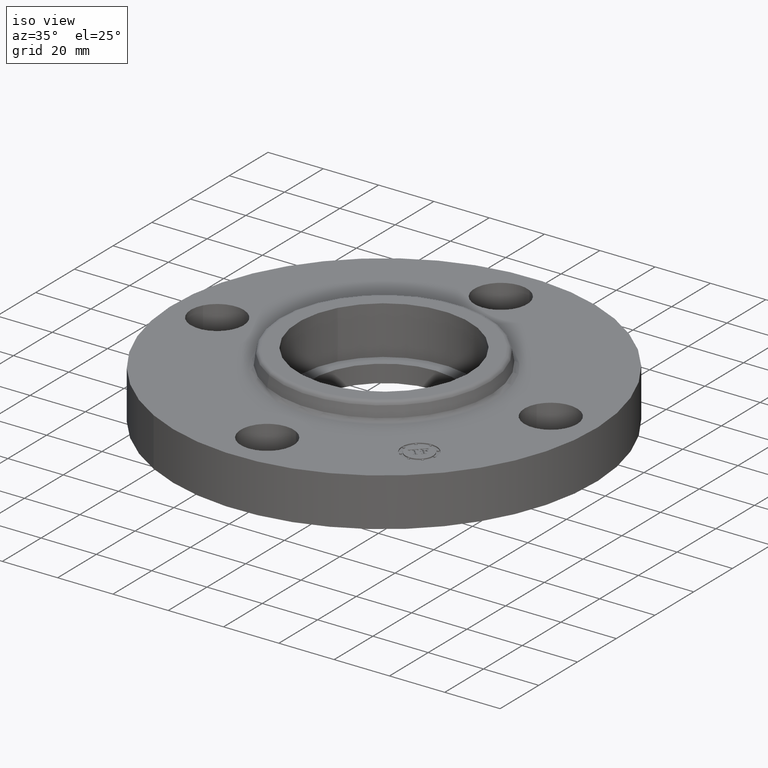
[diagram: clean part render]
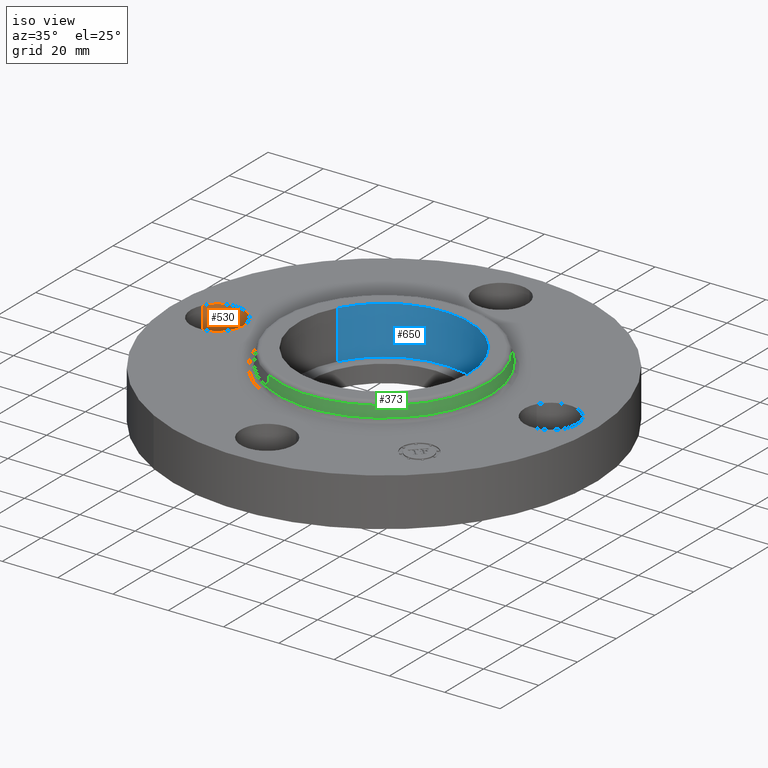
[diagram: same view with three faces highlighted in distinct colors, each labeled with its STEP entity id]
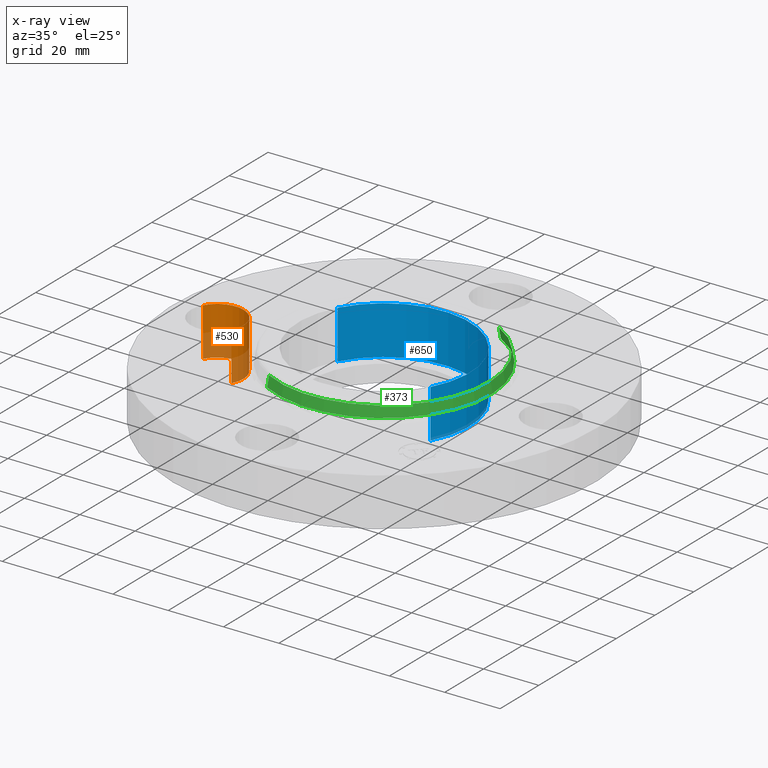
[diagram: x-ray of the same camera — body ghosted, the three highlighted faces saturated]
A machine part, iso view with three faces highlighted in distinct colors.
The next image is the same camera in x-ray (body ghosted, the three faces saturated) — at least one of them is partly hidden behind the body in this view.
Their STEP definitions:

[orange] entity #530 — the highlighted cylindrical surface (edge-blend (fillet) strip) has radius 9.525 mm, axis along (-0, 0, -1).
#217=AXIS2_PLACEMENT_3D('Circle Axis2P3D',#215,#216,$) ;
#503=AXIS2_PLACEMENT_3D('Cylinder Axis2P3D',#500,#501,#502) ;
#521=AXIS2_PLACEMENT_3D('Circle Axis2P3D',#519,#520,$) ;
#210=CARTESIAN_POINT('Vertex',(-2.0459065393,-0.179784576977,0.)) ;
#212=CARTESIAN_POINT('Vertex',(-2.70409346072,0.179784576977,0.)) ;
#215=CARTESIAN_POINT('Axis2P3D Location',(-2.37500000001,-2.79741234551E-016,0.)) ;
#500=CARTESIAN_POINT('Axis2P3D Location',(-2.37500000001,-2.90853614799E-016,0.686062992129)) ;
#505=CARTESIAN_POINT('Line Origine',(-2.70409346072,0.179784576977,0.345000000001)) ;
#509=CARTESIAN_POINT('Vertex',(-2.70409346072,0.179784576977,0.690000000003)) ;
#512=CARTESIAN_POINT('Line Origine',(-2.0459065393,-0.179784576977,0.345000000001)) ;
#516=CARTESIAN_POINT('Vertex',(-2.0459065393,-0.179784576977,0.690000000003)) ;
#519=CARTESIAN_POINT('Axis2P3D Location',(-2.37500000001,-2.90853614799E-016,0.690000000003)) ;
#216=DIRECTION('Axis2P3D Direction',(0.,0.,-0.0393700787402)) ;
#501=DIRECTION('Axis2P3D Direction',(-0.,0.,-0.0393700787402)) ;
#502=DIRECTION('Axis2P3D XDirection',(0.0345504945626,-0.0188750212049,-0.)) ;
#506=DIRECTION('Vector Direction',(0.,0.,-0.0393700787402)) ;
#513=DIRECTION('Vector Direction',(0.,0.,-0.0393700787402)) ;
#520=DIRECTION('Axis2P3D Direction',(-0.,0.,-0.0393700787402)) ;
#507=VECTOR('Line Direction',#506,0.0393700787402) ;
#514=VECTOR('Line Direction',#513,0.0393700787402) ;
#525=ORIENTED_EDGE('',*,*,#511,.F.) ;
#526=ORIENTED_EDGE('',*,*,#219,.T.) ;
#527=ORIENTED_EDGE('',*,*,#518,.T.) ;
#528=ORIENTED_EDGE('',*,*,#523,.F.) ;
#530=ADVANCED_FACE('PartBody',(#529),#504,.F.) ;
#218=CIRCLE('generated circle',#217,0.375000000001) ;
#522=CIRCLE('generated circle',#521,0.375000000001) ;
#504=CYLINDRICAL_SURFACE('generated cylinder',#503,0.375000000001) ;
#219=EDGE_CURVE('',#213,#211,#218,.T.) ;
#511=EDGE_CURVE('',#213,#510,#508,.F.) ;
#518=EDGE_CURVE('',#211,#517,#515,.F.) ;
#523=EDGE_CURVE('',#510,#517,#522,.T.) ;
#524=EDGE_LOOP('',(#525,#526,#527,#528)) ;
#529=FACE_OUTER_BOUND('',#524,.T.) ;
#508=LINE('Line',#505,#507) ;
#515=LINE('Line',#512,#514) ;
#211=VERTEX_POINT('',#210) ;
#213=VERTEX_POINT('',#212) ;
#510=VERTEX_POINT('',#509) ;
#517=VERTEX_POINT('',#516) ;

[blue] entity #650 — the highlighted cylindrical surface (partial cylindrical patch) has radius 30.988 mm, axis along (0, 0, -1).
#42=AXIS2_PLACEMENT_3D('Circle Axis2P3D',#40,#41,$) ;
#440=AXIS2_PLACEMENT_3D('Circle Axis2P3D',#438,#439,$) ;
#632=AXIS2_PLACEMENT_3D('Cylinder Axis2P3D',#629,#630,#631) ;
#40=CARTESIAN_POINT('Axis2P3D Location',(0.,-6.99353086378E-017,0.250000000001)) ;
#44=CARTESIAN_POINT('Vertex',(-1.07065072551,0.584899157099,0.250000000001)) ;
#46=CARTESIAN_POINT('Vertex',(1.07065072551,-0.584899157099,0.250000000001)) ;
#438=CARTESIAN_POINT('Axis2P3D Location',(6.99353086378E-017,-2.79741234551E-016,0.940000000004)) ;
#442=CARTESIAN_POINT('Vertex',(-1.07065072551,0.584899157099,0.940000000004)) ;
#444=CARTESIAN_POINT('Vertex',(1.07065072551,-0.584899157099,0.940000000004)) ;
#629=CARTESIAN_POINT('Axis2P3D Location',(0.,-6.99353086378E-017,0.93606299213)) ;
#634=CARTESIAN_POINT('Line Origine',(-1.07065072551,0.584899157099,0.595000000002)) ;
#639=CARTESIAN_POINT('Line Origine',(1.07065072551,-0.584899157099,0.595000000002)) ;
#41=DIRECTION('Axis2P3D Direction',(0.,0.,-0.0393700787402)) ;
#439=DIRECTION('Axis2P3D Direction',(0.,0.,-0.0393700787402)) ;
#630=DIRECTION('Axis2P3D Direction',(0.,0.,-0.0393700787402)) ;
#631=DIRECTION('Axis2P3D XDirection',(0.0345504945626,-0.0188750212049,0.)) ;
#635=DIRECTION('Vector Direction',(0.,0.,-0.0393700787402)) ;
#640=DIRECTION('Vector Direction',(0.,0.,-0.0393700787402)) ;
#636=VECTOR('Line Direction',#635,0.0393700787402) ;
#641=VECTOR('Line Direction',#640,0.0393700787402) ;
#645=ORIENTED_EDGE('',*,*,#446,.F.) ;
#646=ORIENTED_EDGE('',*,*,#638,.F.) ;
#647=ORIENTED_EDGE('',*,*,#48,.T.) ;
#648=ORIENTED_EDGE('',*,*,#643,.T.) ;
#650=ADVANCED_FACE('PartBody',(#649),#633,.F.) ;
#43=CIRCLE('generated circle',#42,1.22) ;
#441=CIRCLE('generated circle',#440,1.22) ;
#633=CYLINDRICAL_SURFACE('generated cylinder',#632,1.22) ;
#48=EDGE_CURVE('',#45,#47,#43,.T.) ;
#446=EDGE_CURVE('',#443,#445,#441,.T.) ;
#638=EDGE_CURVE('',#45,#443,#637,.F.) ;
#643=EDGE_CURVE('',#47,#445,#642,.F.) ;
#644=EDGE_LOOP('',(#645,#646,#647,#648)) ;
#649=FACE_OUTER_BOUND('',#644,.T.) ;
#637=LINE('Line',#634,#636) ;
#642=LINE('Line',#639,#641) ;
#45=VERTEX_POINT('',#44) ;
#47=VERTEX_POINT('',#46) ;
#443=VERTEX_POINT('',#442) ;
#445=VERTEX_POINT('',#444) ;

[green] entity #373 — the highlighted conical surface has half-angle 10 deg.
#309=AXIS2_PLACEMENT_3D('Circle Axis2P3D',#307,#308,$) ;
#346=AXIS2_PLACEMENT_3D('Cone Axis2P3D',#343,#344,#345) ;
#357=AXIS2_PLACEMENT_3D('Circle Axis2P3D',#355,#356,$) ;
#304=CARTESIAN_POINT('Vertex',(0.72932970238,1.33502906529,0.739581109343)) ;
#307=CARTESIAN_POINT('Axis2P3D Location',(0.,0.,0.739581109343)) ;
#311=CARTESIAN_POINT('Vertex',(-0.72932970238,-1.33502906529,0.739581109343)) ;
#343=CARTESIAN_POINT('Axis2P3D Location',(0.,0.,0.890418890664)) ;
#348=CARTESIAN_POINT('Line Origine',(0.722954116855,1.32335863426,0.815000000003)) ;
#352=CARTESIAN_POINT('Vertex',(0.716578531331,1.31168820324,0.890418890664)) ;
#355=CARTESIAN_POINT('Axis2P3D Location',(0.,0.,0.890418890664)) ;
#359=CARTESIAN_POINT('Vertex',(-0.716578531331,-1.31168820324,0.890418890664)) ;
#362=CARTESIAN_POINT('Line Origine',(-0.722954116855,-1.32335863426,0.815000000003)) ;
#308=DIRECTION('Axis2P3D Direction',(0.,0.,-0.0393700787402)) ;
#344=DIRECTION('Axis2P3D Direction',(0.,0.,-0.0393700787402)) ;
#345=DIRECTION('Axis2P3D XDirection',(-0.0188750212049,-0.0345504945626,0.)) ;
#349=DIRECTION('Vector Direction',(0.00327761303565,0.00599963041829,-0.03877195878)) ;
#356=DIRECTION('Axis2P3D Direction',(0.,0.,-0.0393700787402)) ;
#363=DIRECTION('Vector Direction',(-0.00327761303565,-0.00599963041829,-0.03877195878)) ;
#350=VECTOR('Line Direction',#349,0.0393700787402) ;
#364=VECTOR('Line Direction',#363,0.0393700787402) ;
#368=ORIENTED_EDGE('',*,*,#313,.F.) ;
#369=ORIENTED_EDGE('',*,*,#354,.T.) ;
#370=ORIENTED_EDGE('',*,*,#361,.T.) ;
#371=ORIENTED_EDGE('',*,*,#366,.F.) ;
#373=ADVANCED_FACE('PartBody',(#372),#347,.T.) ;
#310=CIRCLE('generated circle',#309,1.5212575127) ;
#358=CIRCLE('generated circle',#357,1.49466074214) ;
#347=CONICAL_SURFACE('Cone',#346,1.49466074214,0.174532925199) ;
#313=EDGE_CURVE('',#305,#312,#310,.T.) ;
#354=EDGE_CURVE('',#305,#353,#351,.F.) ;
#361=EDGE_CURVE('',#353,#360,#358,.T.) ;
#366=EDGE_CURVE('',#312,#360,#365,.F.) ;
#367=EDGE_LOOP('',(#368,#369,#370,#371)) ;
#372=FACE_OUTER_BOUND('',#367,.T.) ;
#351=LINE('Line',#348,#350) ;
#365=LINE('Line',#362,#364) ;
#305=VERTEX_POINT('',#304) ;
#312=VERTEX_POINT('',#311) ;
#353=VERTEX_POINT('',#352) ;
#360=VERTEX_POINT('',#359) ;